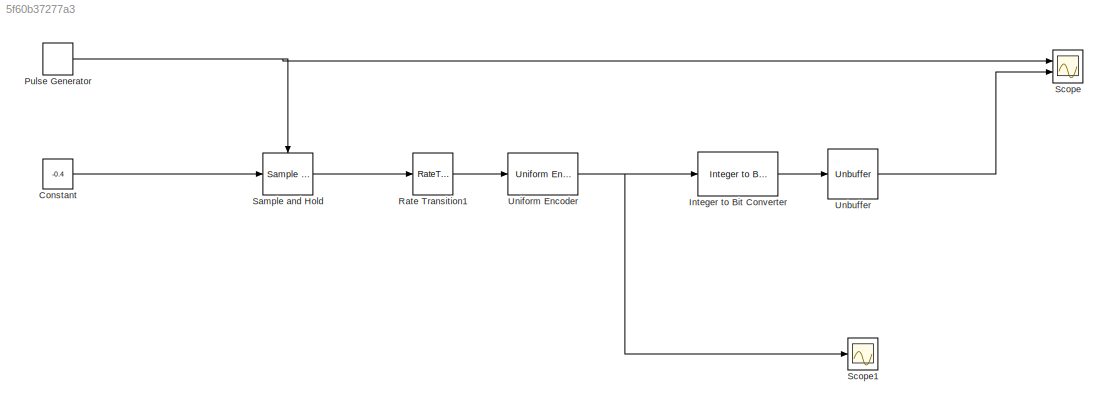
MODEL slx_5f60b37277a3
KIND model
CONFIG AbsTol = auto
CONFIG EnableMultiTasking = off
CONFIG FixedStep = auto
CONFIG MaxStep = auto
CONFIG MinStep = auto
CONFIG RelTol = 1e-3
CONFIG SampleTimeConstraint = Unconstrained
CONFIG Solver = VariableStepAuto
CONFIG SolverName = VariableStepAuto
CONFIG StartTime = 0.0
CONFIG StopTime = 5
BLOCK [Constant] Constant
  Value = -0.4
BLOCK [Reference] Integer to Bit Converter  REF=commutil2/Integer to Bit
Converter
  Ports = [1, 1]
  SourceBlock = commutil2/Integer to Bit\nConverter
  SourceProductBaseCode = CM
  SourceProductName = Communications System Toolbox
  SourceType = Integer to Bit Converter
BLOCK [DiscretePulseGenerator] Pulse Generator
  Period = 1/8000
  Ports = [0, 1]
  PulseType = Time based
  PulseWidth = 50
BLOCK [RateTransition] Rate Transition1
  OutPortSampleTime = 1/8000
BLOCK [Reference] Sample and Hold  REF=dspsigops/Sample
and Hold
  Ports = [1, 1, 0, 1]
  SourceBlock = dspsigops/Sample\nand Hold
  SourceProductBaseCode = DS
  SourceProductName = DSP System Toolbox
  SourceType = Sample and Hold
BLOCK [Scope] Scope
  Floating = off
  NumInputPorts = 2
  Ports = [2]
  ScopeSpecificationString = Simulink.scopes.TimeScopeBlockCfg('CurrentConfiguration', extmgr.ConfigurationSet(extmgr.Configuration('Core','General UI',true),extmgr.Configuration('Core','Source UI',true),extmgr.Configuration('Sources','WiredSimulink',true),extmgr.Configuration('Visuals','Time Domain',true,'SerializedDisplays',{struct('MinYLimReal','-0.125','MaxYLimReal','1.125','YLabelReal','','MinYLimMag','0.00000','MaxYLimM...<+2014ch>
BLOCK [Scope] Scope1
  Floating = off
  NumInputPorts = 1
  Ports = [1]
  ScopeSpecificationString = Simulink.scopes.TimeScopeBlockCfg('CurrentConfiguration', extmgr.ConfigurationSet(extmgr.Configuration('Core','General UI',true),extmgr.Configuration('Core','Source UI',true),extmgr.Configuration('Sources','WiredSimulink',true,'DataLoggingVariableName','ScopeData1'),extmgr.Configuration('Visuals','Time Domain',true,'SerializedDisplays',{struct('MinYLimReal','69.5','MaxYLimReal','134.5','YLabelReal...<+1352ch>
BLOCK [Unbuffer] Unbuffer
  Ports = [1, 1]
BLOCK [Reference] Uniform Encoder  REF=dspquant2/Uniform
Encoder
  Ports = [1, 1]
  SourceBlock = dspquant2/Uniform\nEncoder
  SourceProductBaseCode = DS
  SourceProductName = DSP System Toolbox
  SourceType = Uniform Encoder
LINE Constant:1 -> Sample and Hold:1
LINE Integer to Bit Converter:1 -> Unbuffer:1
NET Pulse Generator:1 -> Sample and Hold:trigger, Scope:1
LINE Rate Transition1:1 -> Uniform Encoder:1
LINE Sample and Hold:1 -> Rate Transition1:1
LINE Unbuffer:1 -> Scope:2
NET Uniform Encoder:1 -> Integer to Bit Converter:1, Scope1:1
note: NET lines group one-source signal fan-out (src -> all destinations, sorted); 1:1 wires keep LINE
